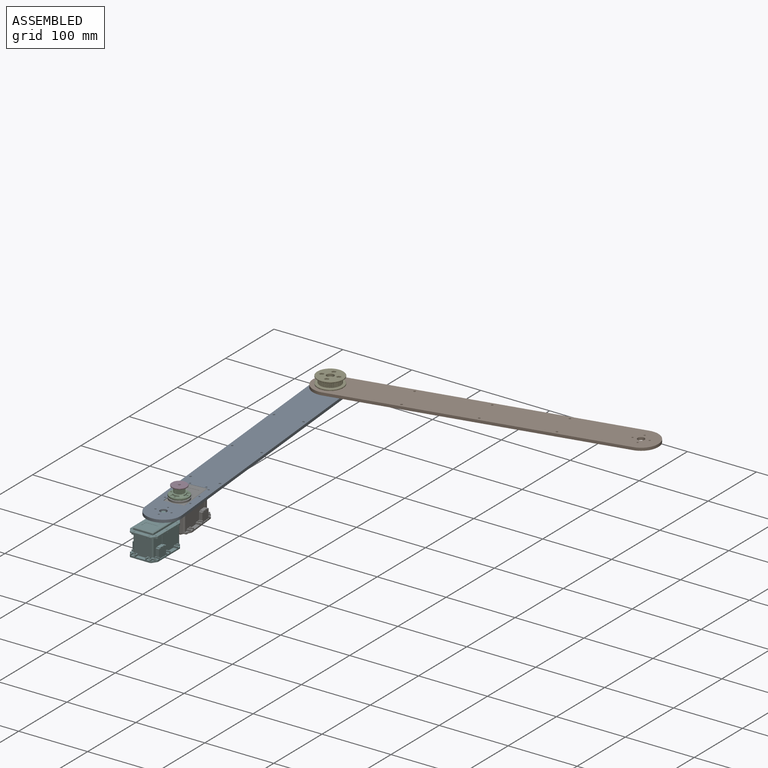
[diagram: assembled view]
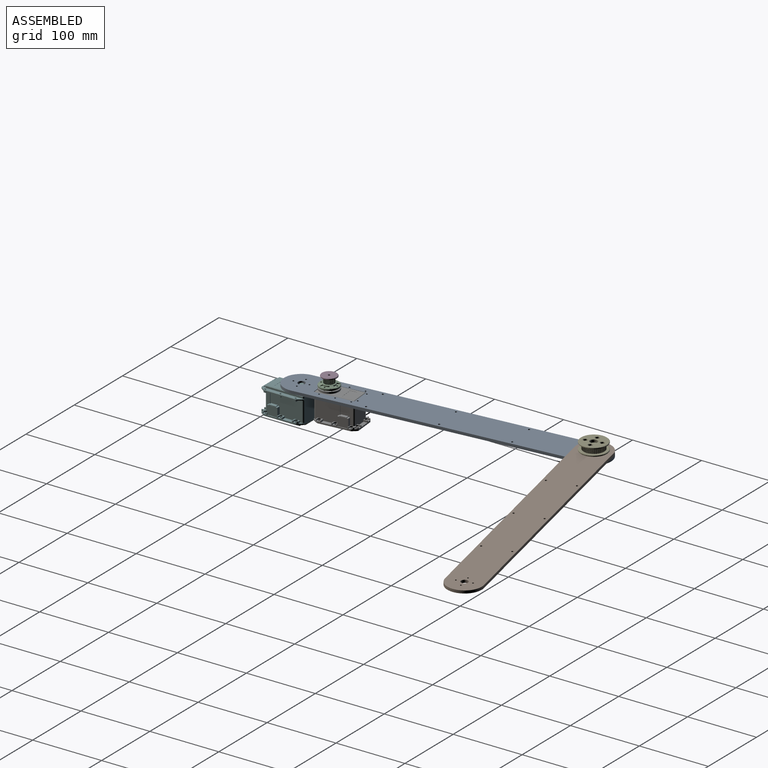
[diagram: assembled view, second angle]
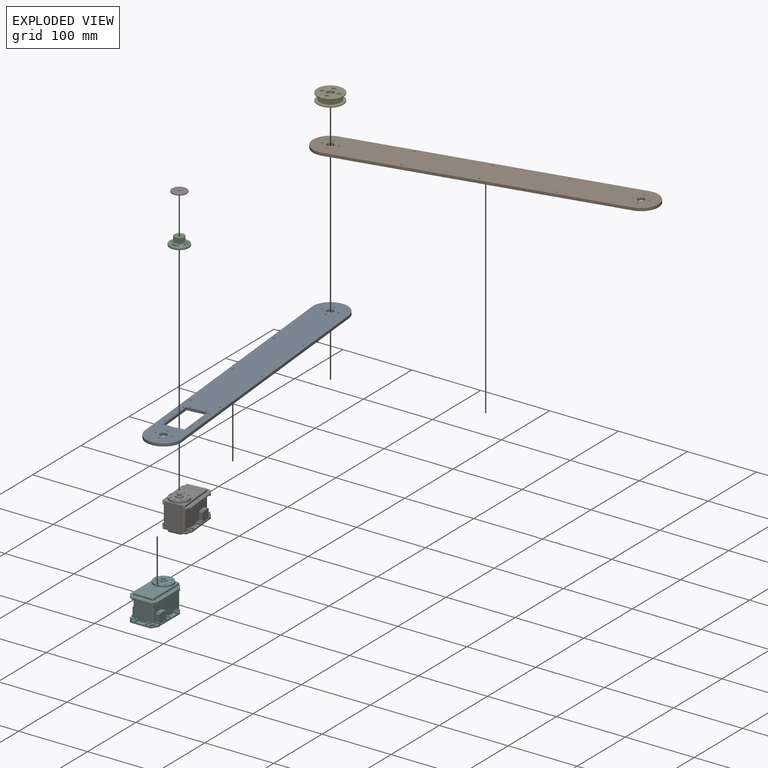
[diagram: exploded view]
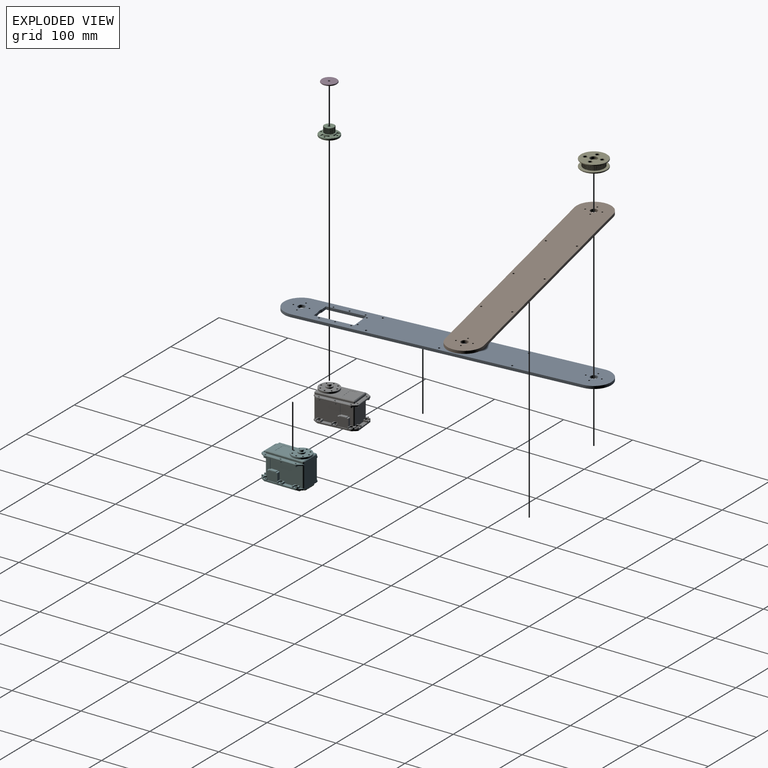
[diagram: exploded view, second angle]
FCSTD DOCUMENT  (FreeCAD 1.0R39109 (Git))
Label: arm_assembly3
License: All rights reserved
LicenseURL: https://en.wikipedia.org/wiki/All_rights_reserved
objects: App::FeaturePython×9, App::Link×5, Sketcher::SketchObject×2, PartDesign::Pad×2, PartDesign::Body×2, Assembly::JointGroup×1, Assembly::AssemblyObject×1
note: 12 computed .brp shape members not serialized (recipe doc carries the construction recipe); baked Part::Feature solids carry a one-line shape summary decoded from their .brp
EXTERNAL_REF file=srv.FCStd obj=Part__Feature
EXTERNAL_REF file=pulleys/gt2_24T_pulley_open.FCStd obj=Body
EXTERNAL_REF file=pulleys/gt2_24T_pulley_open.FCStd obj=Body001
EXTERNAL_REF file=pulleys/gt2_48T_pulley.FCStd obj=Body

FEATURE [Sketcher::SketchObject] Sketch
  ArcFitTolerance = 1e-06
  AttachmentSupport = -> [XY_Plane]
  FullyConstrained = false
  MakeInternals = false
  MapMode = 5
  sketch-geometry (67):
    g0: LineSegment [constr] StartX=1.5008e-12 StartY=20 StartZ=0 EndX=1.5008e-12 EndY=-20 EndZ=0
    g1: LineSegment [constr] StartX=-2.359e-12 StartY=0 StartZ=0 EndX=-2.359e-12 EndY=400 EndZ=0
    g2: LineSegment [constr] StartX=1.5008e-12 StartY=20 StartZ=0 EndX=1.5008e-12 EndY=25 EndZ=0
    g3: Circle CenterX=-2.359e-12 CenterY=400 CenterZ=0 NormalX=0 NormalY=0 NormalZ=1 AngleXU=0 Radius=5
    g4: Circle CenterX=-2.359e-12 CenterY=400 CenterZ=0 NormalX=0 NormalY=0 NormalZ=1 AngleXU=0 Radius=2
    g5: Circle CenterX=-10.9997 CenterY=400 CenterZ=0 NormalX=0 NormalY=0 NormalZ=1 AngleXU=0 Radius=1.25
    g6: Circle CenterX=0 CenterY=389 CenterZ=0 NormalX=0 NormalY=0 NormalZ=1 AngleXU=0 Radius=1.25
    g7: Circle CenterX=10.9997 CenterY=400 CenterZ=0 NormalX=0 NormalY=0 NormalZ=1 AngleXU=0 Radius=1.25
    g8: Circle CenterX=0 CenterY=411 CenterZ=0 NormalX=0 NormalY=0 NormalZ=1 AngleXU=0 Radius=1.25
    g9: LineSegment [constr] StartX=0 StartY=-5 StartZ=0 EndX=0 EndY=5.99996 EndZ=0
    g10: Circle [constr] CenterX=0 CenterY=0 CenterZ=0 NormalX=0 NormalY=0 NormalZ=1 AngleXU=0 Radius=14
    g11: LineSegment [constr] StartX=0 StartY=0 StartZ=0 EndX=25.23 EndY=0 EndZ=0
    g12: Circle [constr] CenterX=0 CenterY=-3.8e-05 CenterZ=0 NormalX=0 NormalY=0 NormalZ=1 AngleXU=0 Radius=11
    g13: Circle CenterX=0 CenterY=0 CenterZ=0 NormalX=0 NormalY=0 NormalZ=1 AngleXU=0 Radius=5
    g14: Circle CenterX=10.9997 CenterY=0 CenterZ=0 NormalX=0 NormalY=0 NormalZ=1 AngleXU=0 Radius=1.25
    g15: Circle CenterX=-10.9997 CenterY=0 CenterZ=0 NormalX=0 NormalY=0 NormalZ=1 AngleXU=0 Radius=1.25
    g16: Circle CenterX=0 CenterY=-10.9997 CenterZ=0 NormalX=0 NormalY=0 NormalZ=1 AngleXU=0 Radius=1.25
    g17: Circle CenterX=0 CenterY=11 CenterZ=0 NormalX=0 NormalY=0 NormalZ=1 AngleXU=0 Radius=1.25
    g18: LineSegment [constr] StartX=0 StartY=0 StartZ=0 EndX=-25 EndY=0 EndZ=0
    g19: LineSegment [constr] StartX=20.1368 StartY=86.0999 StartZ=0 EndX=20.1368 EndY=24.9999 EndZ=0
    g20: LineSegment [constr] StartX=0.036848 StartY=80.5 StartZ=0 EndX=14.5368 EndY=80.5 EndZ=0
    g21: LineSegment StartX=14.5368 StartY=80.5 StartZ=0 EndX=-14.4632 EndY=80.5 EndZ=0
    g22: LineSegment StartX=14.5368 StartY=80.5 StartZ=0 EndX=14.5368 EndY=24.9999 EndZ=0
    g23: Circle CenterX=11.0368 CenterY=83.3 CenterZ=0 NormalX=0 NormalY=0 NormalZ=1 AngleXU=0 Radius=1.25
    g24: Circle CenterX=17.3368 CenterY=78 CenterZ=0 NormalX=0 NormalY=0 NormalZ=1 AngleXU=0 Radius=1.25
    g25: LineSegment [constr] StartX=-20.0632 StartY=86.0999 StartZ=0 EndX=20.1368 EndY=86.0999 EndZ=0
    g26: Circle CenterX=17.3368 CenterY=56 CenterZ=0 NormalX=0 NormalY=0 NormalZ=1 AngleXU=0 Radius=1.25
    g27: Circle CenterX=17.3368 CenterY=34 CenterZ=0 NormalX=0 NormalY=0 NormalZ=1 AngleXU=0 Radius=1.25
    g28: Circle [constr] CenterX=0.036848 CenterY=37.9999 CenterZ=0 NormalX=0 NormalY=0 NormalZ=1 AngleXU=0 Radius=14
    g29: ArcOfCircle CenterX=0.036848 CenterY=37.9999 CenterZ=0 NormalX=0 NormalY=0 NormalZ=1 AngleXU=0 Radius=14 StartAngle=4.33214 EndAngle=5.09264
    g30: LineSegment StartX=5.233 StartY=24.9999 StartZ=0 EndX=14.5368 EndY=24.9999 EndZ=0
    g31: LineSegment [constr] StartX=14.5368 StartY=24.9999 StartZ=0 EndX=20.1368 EndY=24.9999 EndZ=0
    g32: LineSegment [constr] StartX=17.3368 StartY=56 StartZ=0 EndX=-17.2632 EndY=56 EndZ=0
    g33: LineSegment [constr] StartX=-20.0632 StartY=24.9999 StartZ=0 EndX=-20.0632 EndY=86.0999 EndZ=0
    g34: LineSegment StartX=-14.4632 StartY=80.5 StartZ=0 EndX=-14.4632 EndY=24.9999 EndZ=0
    g35: Circle CenterX=-17.2632 CenterY=78 CenterZ=0 NormalX=0 NormalY=0 NormalZ=1 AngleXU=0 Radius=1.25
    g36: Circle CenterX=-10.9632 CenterY=83.3 CenterZ=0 NormalX=0 NormalY=0 NormalZ=1 AngleXU=0 Radius=1.25
    g37: Circle CenterX=-17.2632 CenterY=56 CenterZ=0 NormalX=0 NormalY=0 NormalZ=1 AngleXU=0 Radius=1.25
    g38: Circle CenterX=-17.2632 CenterY=34 CenterZ=0 NormalX=0 NormalY=0 NormalZ=1 AngleXU=0 Radius=1.25
    g39: LineSegment StartX=-14.4632 StartY=24.9999 StartZ=0 EndX=-5.15931 EndY=24.9999 EndZ=0
    g40: LineSegment [constr] StartX=-20.0632 StartY=24.9999 StartZ=0 EndX=-14.4632 EndY=24.9999 EndZ=0
    g41: ArcOfCircle CenterX=0.115002 CenterY=3.75548e-06 CenterZ=0 NormalX=0 NormalY=0 NormalZ=1 AngleXU=0 Radius=25.115 StartAngle=3.14159 EndAngle=6.28319
    g42: ArcOfCircle CenterX=0.115002 CenterY=399.959 CenterZ=0 NormalX=0 NormalY=0 NormalZ=1 AngleXU=0 Radius=25.115 StartAngle=0 EndAngle=3.14159
    g43: LineSegment StartX=-25 StartY=3.75548e-06 StartZ=0 EndX=-25 EndY=399.959 EndZ=0
    g44: LineSegment StartX=25.23 StartY=3.75548e-06 StartZ=0 EndX=25.23 EndY=399.959 EndZ=0
    g45: LineSegment [constr] StartX=25.23 StartY=199.98 StartZ=0 EndX=-25 EndY=199.98 EndZ=0
    g46: LineSegment [constr] StartX=25.23 StartY=199.98 StartZ=0 EndX=55.23 EndY=199.98 EndZ=0
    g47: LineSegment [constr] StartX=25.23 StartY=0 StartZ=0 EndX=55.23 EndY=0 EndZ=0
    g48: LineSegment [constr] StartX=55.23 StartY=0 StartZ=0 EndX=55.23 EndY=199.98 EndZ=0
    g49: LineSegment [constr] StartX=55.23 StartY=99.9898 StartZ=0 EndX=25.23 EndY=99.9898 EndZ=0
    g50: LineSegment [constr] StartX=25.23 StartY=99.9898 StartZ=0 EndX=-25 EndY=99.9898 EndZ=0
    g51: LineSegment [constr] StartX=25.23 StartY=399.959 StartZ=0 EndX=55.23 EndY=399.959 EndZ=0
    g52: LineSegment [constr] StartX=55.23 StartY=399.959 StartZ=0 EndX=55.23 EndY=199.98 EndZ=0
    g53: LineSegment [constr] StartX=55.23 StartY=299.969 StartZ=0 EndX=25.23 EndY=299.969 EndZ=0
    g54: LineSegment [constr] StartX=25.23 StartY=299.969 StartZ=0 EndX=-25 EndY=299.969 EndZ=0
    g55: LineSegment [constr] StartX=-25 StartY=299.969 StartZ=0 EndX=-20 EndY=299.969 EndZ=0
    g56: LineSegment [constr] StartX=-20 StartY=299.969 StartZ=0 EndX=-20 EndY=199.98 EndZ=0
    g57: LineSegment [constr] StartX=-20 StartY=199.98 StartZ=0 EndX=-20 EndY=99.9898 EndZ=0
    g58: LineSegment [constr] StartX=25.23 StartY=299.969 StartZ=0 EndX=20.23 EndY=299.969 EndZ=0
    g59: LineSegment [constr] StartX=20.23 StartY=299.969 StartZ=0 EndX=20.23 EndY=199.98 EndZ=0
    g60: LineSegment [constr] StartX=20.23 StartY=199.98 StartZ=0 EndX=20.23 EndY=99.9898 EndZ=0
    g61: Circle CenterX=-20 CenterY=299.969 CenterZ=0 NormalX=0 NormalY=0 NormalZ=1 AngleXU=0 Radius=1.5
    g62: Circle CenterX=20.23 CenterY=299.969 CenterZ=0 NormalX=0 NormalY=0 NormalZ=1 AngleXU=0 Radius=1.5
    g63: Circle CenterX=-20 CenterY=199.98 CenterZ=0 NormalX=0 NormalY=0 NormalZ=1 AngleXU=0 Radius=1.5
    g64: Circle CenterX=20.23 CenterY=199.98 CenterZ=0 NormalX=0 NormalY=0 NormalZ=1 AngleXU=0 Radius=1.5
    g65: Circle CenterX=-20 CenterY=99.9898 CenterZ=0 NormalX=0 NormalY=0 NormalZ=1 AngleXU=0 Radius=1.5
    g66: Circle CenterX=20.23 CenterY=99.9898 CenterZ=0 NormalX=0 NormalY=0 NormalZ=1 AngleXU=0 Radius=1.5
  constraints (132):
    c: Vertical(g0)
    c: Vertical(g1)
    c: Coincident(g2,g0)
    c: Vertical(g2)
    c: Diameter(g3) = 10
    c: Coincident(g3,g1)
    c: Diameter(g4) = 4
    c: Coincident(g4,g1)
    c: Diameter(g8) = 2.5
    c: Diameter(g5) = 2.5
    c: Diameter(g6) = 2.5
    c: Diameter(g7) = 2.5
    c: Vertical(g9)
    c: Diameter(g10) = 28
    c: Coincident(g18,g10)
    c: Horizontal(g18)
    c: Coincident(g11,g10)
    c: Horizontal(g11)
    c: Diameter(g12) = 22
    c: Diameter(g13) = 10
    c: Coincident(g13,g10)
    c: Diameter(g17) = 2.5
    c: Diameter(g15) = 2.5
    c: Diameter(g16) = 2.5
    c: Diameter(g14) = 2.5
    c: Coincident(g25,g19)
    c: Coincident(g33,g25)
    c: Horizontal(g25)
    c: Vertical(g19)
    c: Vertical(g33)
    c: Distance(g19,g33) = 40.2
    c: Distance(g25,g33) = 61.1
    c: Diameter(g29) = 28
    c: Horizontal(g20)
    c: Coincident(g21,g20)
    c: Horizontal(g21)
    c: Coincident(g34,g21)
    c: Vertical(g34)
    c: Coincident(g22,g20)
    c: Vertical(g22)
    c: Diameter(g23) = 2.5
    c: Equal(g23,g36)
    c: Equal(g23,g27)
    c: Equal(g23,g38)
    c: Equal(g23,g37)
    c: Equal(g23,g35)
    c: Equal(g23,g24)
    c: Equal(g23,g26)
    c: Coincident(g28,g29)
    c: PointOnObject(g29,g28)
    c: Coincident(g30,g29)
    c: Coincident(g30,g22)
    c: Horizontal(g30)
    c: Coincident(g31,g22)
    c: Coincident(g31,g19)
    c: Horizontal(g31)
    c: Coincident(g39,g34)
    c: Coincident(g39,g29)
    c: Horizontal(g39)
    c: Coincident(g40,g33)
    c: Coincident(g40,g34)
    c: Horizontal(g40)
    c: Coincident(g32,g26)
    c: Coincident(g32,g37)
    c: Horizontal(g32)
    c: DistanceY(g28,g1) = 362
    c: Tangent(g41,g43) = 1.5708
    c: Tangent(g41,g44) = -1.5708
    c: Tangent(g42,g43) = 1.5708
    c: Tangent(g42,g44) = -1.5708
    c: Equal(g41,g42)
    c: Symmetric(g44,g44,g45)
    c: Symmetric(g43,g43,g45)
    c: Horizontal(g45)
    c: Distance(g46) = 30
    c: Horizontal(g46)
    c: Coincident(g46,g45)
    c: Distance(g47) = 30
    c: Horizontal(g47)
    c: Coincident(g47,g11)
    c: PointOnObject(g47,g-1)
    c: Coincident(g48,g47)
    c: Coincident(g48,g46)
    c: Vertical(g48)
    c: Symmetric(g48,g48,g49)
    c: PointOnObject(g49,g44)
    c: Horizontal(g49)
    c: Coincident(g50,g49)
    c: PointOnObject(g50,g43)
    c: Horizontal(g50)
    c: Distance(g51) = 30
    c: Horizontal(g51)
    c: Coincident(g51,g42)
    c: Coincident(g52,g51)
    c: Coincident(g52,g46)
    c: Symmetric(g52,g52,g53)
    c: PointOnObject(g53,g44)
    c: Horizontal(g53)
    c: Coincident(g54,g53)
    c: PointOnObject(g54,g43)
    c: Horizontal(g54)
    c: Distance(g55) = 5
    c: Coincident(g55,g54)
    c: PointOnObject(g55,g54)
    c: Coincident(g56,g55)
    c: PointOnObject(g56,g45)
    c: Vertical(g56)
    c: Coincident(g57,g56)
    c: PointOnObject(g57,g50)
    c: Vertical(g57)
    c: Distance(g58) = 5
    c: Coincident(g58,g53)
    c: PointOnObject(g58,g54)
    c: Coincident(g59,g58)
    c: PointOnObject(g59,g45)
    c: Vertical(g59)
    c: Coincident(g60,g59)
    c: PointOnObject(g60,g50)
    c: Vertical(g60)
    c: Coincident(g61,g55)
    c: Diameter(g61) = 3
    c: Coincident(g62,g58)
    c: Equal(g61,g62)
    c: Coincident(g63,g56)
    c: Equal(g61,g63)
    c: Coincident(g64,g59)
    c: Equal(g63,g64)
    c: Coincident(g65,g57)
    c: Equal(g63,g65)
    c: Coincident(g66,g60)
    c: Equal(g65,g66)
    c: DistanceY(g41,g28) = 37.9999
FEATURE [Sketcher::SketchObject] Sketch001
  ArcFitTolerance = 1e-06
  FullyConstrained = false
  MakeInternals = false
  MapMode = 5
  sketch-geometry (41):
    g0: Circle [constr] CenterX=7e-16 CenterY=0.000303 CenterZ=0 NormalX=0 NormalY=0 NormalZ=1 AngleXU=0 Radius=14
    g1: LineSegment [constr] StartX=7e-16 StartY=0.000303 StartZ=0 EndX=7e-16 EndY=400.001 EndZ=0
    g2: Circle CenterX=7e-16 CenterY=400.001 CenterZ=0 NormalX=0 NormalY=0 NormalZ=1 AngleXU=0 Radius=5
    g3: Circle CenterX=7e-16 CenterY=0 CenterZ=0 NormalX=0 NormalY=0 NormalZ=1 AngleXU=0 Radius=5
    g4: Circle CenterX=7e-16 CenterY=400.001 CenterZ=0 NormalX=0 NormalY=0 NormalZ=1 AngleXU=0 Radius=2
    g5: Circle CenterX=7e-16 CenterY=0.000303 CenterZ=0 NormalX=0 NormalY=0 NormalZ=1 AngleXU=0 Radius=2
    g6: Circle [constr] CenterX=0 CenterY=0 CenterZ=0 NormalX=0 NormalY=0 NormalZ=1 AngleXU=0 Radius=11
    g7: ArcOfCircle CenterX=7e-16 CenterY=0 CenterZ=0 NormalX=0 NormalY=0 NormalZ=1 AngleXU=0 Radius=25 StartAngle=3.14159 EndAngle=6.28319
    g8: ArcOfCircle CenterX=7e-16 CenterY=400.001 CenterZ=0 NormalX=0 NormalY=0 NormalZ=1 AngleXU=0 Radius=25 StartAngle=6e-16 EndAngle=3.14159
    g9: LineSegment StartX=-25 StartY=-8e-15 StartZ=0 EndX=-25 EndY=400.001 EndZ=0
    g10: LineSegment StartX=25 StartY=0 StartZ=0 EndX=25 EndY=400.001 EndZ=0
    g11: Circle CenterX=10.9997 CenterY=400.001 CenterZ=0 NormalX=0 NormalY=0 NormalZ=1 AngleXU=0 Radius=1.25
    g12: Circle CenterX=0 CenterY=411.001 CenterZ=0 NormalX=0 NormalY=0 NormalZ=1 AngleXU=0 Radius=1.25
    g13: Circle CenterX=-10.9997 CenterY=400.001 CenterZ=0 NormalX=0 NormalY=0 NormalZ=1 AngleXU=0 Radius=1.25
    g14: Circle CenterX=0 CenterY=389.001 CenterZ=0 NormalX=0 NormalY=0 NormalZ=1 AngleXU=0 Radius=1.25
    g15: Circle CenterX=10.9997 CenterY=0.000303 CenterZ=0 NormalX=0 NormalY=0 NormalZ=1 AngleXU=0 Radius=1.25
    g16: Circle CenterX=0 CenterY=11 CenterZ=0 NormalX=0 NormalY=0 NormalZ=1 AngleXU=0 Radius=1.25
    g17: Circle CenterX=-10.9997 CenterY=0.000303 CenterZ=0 NormalX=0 NormalY=0 NormalZ=1 AngleXU=0 Radius=1.25
    g18: Circle CenterX=0 CenterY=-10.9994 CenterZ=0 NormalX=0 NormalY=0 NormalZ=1 AngleXU=0 Radius=1.25
    g19: LineSegment [constr] StartX=25 StartY=200 StartZ=0 EndX=-25 EndY=200 EndZ=0
    g20: LineSegment [constr] StartX=25 StartY=200 StartZ=0 EndX=55 EndY=200 EndZ=0
    g21: LineSegment [constr] StartX=25 StartY=0 StartZ=0 EndX=55 EndY=0 EndZ=0
    g22: LineSegment [constr] StartX=25 StartY=400.001 StartZ=0 EndX=55 EndY=400.001 EndZ=0
    g23: LineSegment [constr] StartX=55 StartY=200 StartZ=0 EndX=55 EndY=400.001 EndZ=0
    g24: LineSegment [constr] StartX=55 StartY=200 StartZ=0 EndX=55 EndY=0 EndZ=0
    g25: LineSegment [constr] StartX=55 StartY=100 StartZ=0 EndX=25 EndY=100 EndZ=0
    g26: LineSegment [constr] StartX=25 StartY=100 StartZ=0 EndX=-25 EndY=100 EndZ=0
    g27: LineSegment [constr] StartX=55 StartY=300 StartZ=0 EndX=25 EndY=300 EndZ=0
    g28: LineSegment [constr] StartX=25 StartY=300 StartZ=0 EndX=-25 EndY=300 EndZ=0
    g29: LineSegment [constr] StartX=-25 StartY=300 StartZ=0 EndX=-20 EndY=300 EndZ=0
    g30: LineSegment [constr] StartX=-20 StartY=300 StartZ=0 EndX=-20 EndY=200 EndZ=0
    g31: LineSegment [constr] StartX=-20 StartY=200 StartZ=0 EndX=-20 EndY=100 EndZ=0
    g32: LineSegment [constr] StartX=25 StartY=100 StartZ=0 EndX=20 EndY=100 EndZ=0
    g33: LineSegment [constr] StartX=20 StartY=100 StartZ=0 EndX=20 EndY=200 EndZ=0
    g34: LineSegment [constr] StartX=20 StartY=200 StartZ=0 EndX=20 EndY=300 EndZ=0
    g35: Circle CenterX=-20 CenterY=300 CenterZ=0 NormalX=0 NormalY=0 NormalZ=1 AngleXU=0 Radius=1.5
    g36: Circle CenterX=20 CenterY=300 CenterZ=0 NormalX=0 NormalY=0 NormalZ=1 AngleXU=0 Radius=1.5
    g37: Circle CenterX=-20 CenterY=200 CenterZ=0 NormalX=0 NormalY=0 NormalZ=1 AngleXU=0 Radius=1.5
    g38: Circle CenterX=20 CenterY=200 CenterZ=0 NormalX=0 NormalY=0 NormalZ=1 AngleXU=0 Radius=1.5
    g39: Circle CenterX=-20 CenterY=100 CenterZ=0 NormalX=0 NormalY=0 NormalZ=1 AngleXU=0 Radius=1.5
    g40: Circle CenterX=20 CenterY=100 CenterZ=0 NormalX=0 NormalY=0 NormalZ=1 AngleXU=0 Radius=1.5
  constraints (85):
    c: Diameter(g0) = 28
    c: Coincident(g1,g0)
    c: Vertical(g1)
    c: Coincident(g2,g1)
    c: Diameter(g3) = 10
    c: Diameter(g4) = 4
    c: Coincident(g4,g1)
    c: Diameter(g5) = 4
    c: Coincident(g5,g0)
    c: Diameter(g6) = 22
    c: Tangent(g7,g9) = 1.5708
    c: Tangent(g7,g10) = -1.5708
    c: Tangent(g8,g9) = 1.5708
    c: Tangent(g8,g10) = -1.5708
    c: Equal(g7,g8)
    c: Radius(g7) = 25
    c: Coincident(g7,g3)
    c: Coincident(g8,g1)
    c: Vertical(g9)
    c: Diameter(g12) = 2.5
    c: Diameter(g13) = 2.5
    c: Diameter(g14) = 2.5
    c: Diameter(g11) = 2.5
    c: Diameter(g16) = 2.5
    c: Diameter(g17) = 2.5
    c: Diameter(g18) = 2.5
    c: Diameter(g15) = 2.5
    c: Symmetric(g10,g10,g19)
    c: Symmetric(g9,g9,g19)
    c: Distance(g20) = 30
    c: Horizontal(g20)
    c: Coincident(g20,g19)
    c: Distance(g21) = 30
    c: Horizontal(g21)
    c: Coincident(g21,g7)
    c: PointOnObject(g21,g-1)
    c: Distance(g22) = 30
    c: Horizontal(g22)
    c: Coincident(g22,g8)
    c: Coincident(g23,g20)
    c: Coincident(g23,g22)
    c: Coincident(g24,g20)
    c: Coincident(g24,g21)
    c: Symmetric(g24,g24,g25)
    c: PointOnObject(g25,g10)
    c: Horizontal(g25)
    c: Coincident(g26,g25)
    c: PointOnObject(g26,g9)
    c: Horizontal(g26)
    c: Symmetric(g23,g23,g27)
    c: PointOnObject(g27,g10)
    c: Horizontal(g27)
    c: Coincident(g28,g27)
    c: PointOnObject(g28,g9)
    c: Horizontal(g28)
    c: Distance(g29) = 5
    c: Horizontal(g29)
    c: Coincident(g29,g28)
    c: Coincident(g30,g29)
    c: PointOnObject(g30,g19)
    c: Vertical(g30)
    c: Coincident(g31,g30)
    c: PointOnObject(g31,g26)
    c: Vertical(g31)
    c: Distance(g32) = 5
    c: Horizontal(g32)
    c: Coincident(g32,g25)
    c: Coincident(g33,g32)
    c: PointOnObject(g33,g19)
    c: Vertical(g33)
    c: Coincident(g34,g33)
    c: PointOnObject(g34,g28)
    c: Vertical(g34)
    c: Diameter(g35) = 3
    c: Coincident(g35,g29)
    c: Coincident(g36,g34)
    c: Equal(g35,g36)
    c: Coincident(g37,g30)
    c: Equal(g35,g37)
    c: Coincident(g38,g33)
    c: Equal(g37,g38)
    c: Coincident(g39,g31)
    c: Equal(g37,g39)
    c: Coincident(g40,g32)
    c: Equal(g39,g40)
FEATURE [PartDesign::Pad] Pad
  Direction = (0,0,1)
  Length = 4
  Length2 = 10
  Profile = -> Sketch
  ReferenceAxis = -> Sketch [N_Axis]
  Refine = true
  Suppressed = false
  Type = 0
FEATURE [PartDesign::Body] Body  label="arm_low_1"
  AllowCompound = false
  Group = -> [Sketch,Pad]
  Origin = -> Origin
  Placement = pos=(0,0,25.3) rot=(0,0,1;0.092226rad)
  Tip = -> Pad
FEATURE [PartDesign::Pad] Pad001
  Direction = (0,0,1)
  Length = 4
  Length2 = 10
  Profile = -> Sketch001
  ReferenceAxis = -> Sketch001 [N_Axis]
  Refine = true
  Suppressed = false
  Type = 0
FEATURE [PartDesign::Body] Body001  label="arm_high_1"
  AllowCompound = false
  Group = -> [Sketch001,Pad001]
  Origin = -> Origin001
  Placement = pos=(353.819,484.249,29.3) rot=(0,0,1;1.78736rad)
  Tip = -> Pad001
FEATURE [App::Link] DC05_M01_DUMMY
  LinkedObject = -> <external srv.FCStd>#Part__Feature
FEATURE [App::FeaturePython] GroundedJoint  # Assembly grounded joint (typed FeaturePython)
  ObjectToGround = -> DC05_M01_DUMMY
FEATURE [App::FeaturePython] Joint  label="Revolute"  # Assembly joint (typed FeaturePython)
  Activated = true
  AngleMax = 0
  AngleMin = 0
  Detach1 = false
  Detach2 = false
  Distance = 0
  Distance2 = 0
  EnableAngleMax = false
  EnableAngleMin = false
  EnableLengthMax = false
  EnableLengthMin = false
  JointType = 1 (Revolute)
  LengthMax = 0
  LengthMin = 0
  Placement2 = pos=(0,0,25.3) rot=(-0.707107,0.707107,0;3.14159rad)
  Reference1 = -> Assembly [Body.Face11,Body.Edge2]
  Reference2 = -> Assembly [DC05_M01_DUMMY.Face269,DC05_M01_DUMMY.Edge1]
FEATURE [App::FeaturePython] Joint001  label="Revolute001"  # Assembly joint (typed FeaturePython)
  Activated = true
  AngleMax = 0
  AngleMin = 0
  Detach1 = false
  Detach2 = false
  Distance = 0
  Distance2 = 0
  EnableAngleMax = false
  EnableAngleMin = false
  EnableLengthMax = false
  EnableLengthMin = false
  JointType = 1 (Revolute)
  LengthMax = 0
  LengthMin = 0
  Placement1 = pos=(-5.68e-14,400.001,0) rot=(0,0,1;0rad)
  Placement2 = pos=(-2.4016e-12,400,4) rot=(0,0,1;0rad)
  Reference1 = -> Assembly [Body001.Edge17,Body001.Edge17]
  Reference2 = -> Assembly [Body.Edge36,Body.Edge36]
FEATURE [App::Link] DC05_M01_DUMMY001
  LinkPlacement = pos=(-3.46293,37.8418,9.05) rot=(0,0,1;3.23382rad)
  LinkedObject = -> <external srv.FCStd>#Part__Feature
  Placement = pos=(-3.46293,37.8418,9.05) rot=(0,0,1;3.23382rad)
FEATURE [App::FeaturePython] Joint002  label="Distance"  # Assembly joint (typed FeaturePython)
  Activated = true
  AngleMax = 0
  AngleMin = 0
  Detach1 = false
  Detach2 = false
  Distance = 0
  Distance2 = 0
  EnableAngleMax = false
  EnableAngleMin = false
  EnableLengthMax = false
  EnableLengthMin = false
  JointType = 5 (Distance)
  LengthMax = 0
  LengthMin = 0
  Placement1 = pos=(0.00149626,-23.2403,17) rot=(0,0,1;0rad)
  Placement2 = pos=(-10.9997,-1.1e-15,2) rot=(0,0,1;0rad)
  Reference1 = -> Assembly [DC05_M01_DUMMY001.Face128,DC05_M01_DUMMY001.Vertex405]
  Reference2 = -> Assembly [Body.Face29,Body.Edge23]
FEATURE [App::FeaturePython] Joint003  label="Distance001"  # Assembly joint (typed FeaturePython)
  Activated = true
  AngleMax = 0
  AngleMin = 0
  Detach1 = false
  Detach2 = false
  Distance = -55.5
  Distance2 = 0
  EnableAngleMax = false
  EnableAngleMin = false
  EnableLengthMax = false
  EnableLengthMin = false
  JointType = 5 (Distance)
  LengthMax = 0
  LengthMin = 0
  Placement1 = pos=(3.76754e-09,-42.5,18.25) rot=(1,0,0;1.5708rad)
  Placement2 = pos=(-9.81123,24.9999,2) rot=(-1,0,0;1.5708rad)
  Reference1 = -> Assembly [DC05_M01_DUMMY001.Face34,DC05_M01_DUMMY001.Face34]
  Reference2 = -> Assembly [Body.Face7,Body.Face7]
FEATURE [App::FeaturePython] Joint004  label="Distance002"  # Assembly joint (typed FeaturePython)
  Activated = true
  AngleMax = 0
  AngleMin = 0
  Detach1 = false
  Detach2 = false
  Distance = -28.5
  Distance2 = 0
  EnableAngleMax = false
  EnableAngleMin = false
  EnableLengthMax = false
  EnableLengthMin = false
  JointType = 5 (Distance)
  LengthMax = 0
  LengthMin = 0
  Placement1 = pos=(-14.5,-15.25,18.25) rot=(0.57735,-0.57735,-0.57735;2.0944rad)
  Placement2 = pos=(0.036848,37.9999,2) rot=(0,0,1;0rad)
  Reference1 = -> Assembly [DC05_M01_DUMMY001.Face46,DC05_M01_DUMMY001.Face46]
  Reference2 = -> Assembly [Body.Face8,Body.Face8]
FEATURE [App::Link] Body002  label="25T_1_pulley"
  LinkPlacement = pos=(-3.46293,37.8418,38.55) rot=(0,0,-1;1.47857rad)
  LinkedObject = -> <external pulleys/gt2_24T_pulley_open.FCStd>#Body
  Placement = pos=(-3.46293,37.8418,38.55) rot=(0,0,-1;1.47857rad)
FEATURE [App::FeaturePython] Joint005  label="Fixed"  # Assembly joint (typed FeaturePython)
  Activated = true
  AngleMax = 0
  AngleMin = 0
  Detach1 = false
  Detach2 = false
  Distance = 0
  Distance2 = 0
  EnableAngleMax = false
  EnableAngleMin = false
  EnableLengthMax = false
  EnableLengthMin = false
  JointType = 0 (Fixed)
  LengthMax = 0
  LengthMin = 0
  Placement1 = pos=(0,0,-6) rot=(1,0,0;3.14159rad)
  Placement2 = pos=(0,0,23.5) rot=(-0.707107,-0.707107,0;3.14159rad)
  Reference1 = -> Assembly [Body002.Edge454,Body002.Edge454]
  Reference2 = -> Assembly [DC05_M01_DUMMY001.Edge888,DC05_M01_DUMMY001.Edge888]
FEATURE [App::Link] Body003  label="25T_1_cover"
  LinkPlacement = pos=(-3.46293,37.8418,38.55) rot=(0,0,-1;1.47857rad)
  LinkedObject = -> <external pulleys/gt2_24T_pulley_open.FCStd>#Body001
  Placement = pos=(-3.46293,37.8418,38.55) rot=(0,0,-1;1.47857rad)
FEATURE [App::FeaturePython] Joint006  label="Fixed001"  # Assembly joint (typed FeaturePython)
  Activated = true
  AngleMax = 0
  AngleMin = 0
  Detach1 = false
  Detach2 = false
  Distance = 0
  Distance2 = 0
  EnableAngleMax = false
  EnableAngleMin = false
  EnableLengthMax = false
  EnableLengthMin = false
  JointType = 0 (Fixed)
  LengthMax = 0
  LengthMin = 0
  Placement1 = pos=(0,0,8) rot=(0,0,1;0rad)
  Placement2 = pos=(0,0,8) rot=(1,0,0;3.14159rad)
  Reference1 = -> Assembly [Body003.Edge8,Body003.Edge8]
  Reference2 = -> Assembly [Body002.Edge1,Body002.Edge1]
FEATURE [App::Link] Body004  label="48T_1"
  LinkPlacement = pos=(-36.8382,398.3,35.3) rot=(0,0,1;1.78736rad)
  LinkedObject = -> <external pulleys/gt2_48T_pulley.FCStd>#Body
  Placement = pos=(-36.8382,398.3,35.3) rot=(0,0,1;1.78736rad)
FEATURE [App::FeaturePython] Joint007  label="Fixed002"  # Assembly joint (typed FeaturePython)
  Activated = true
  AngleMax = 0
  AngleMin = 0
  Detach1 = false
  Detach2 = false
  Distance = 0
  Distance2 = 0
  EnableAngleMax = false
  EnableAngleMin = false
  EnableLengthMax = false
  EnableLengthMin = false
  JointType = 0 (Fixed)
  LengthMax = 0
  LengthMin = 0
  Placement1 = pos=(0,0,-2) rot=(1,0,0;3.14159rad)
  Placement2 = pos=(-5.68e-14,400.001,4) rot=(0,0,1;0rad)
  Reference1 = -> Assembly [Body004.Edge875,Body004.Edge875]
  Reference2 = -> Assembly [Body001.Edge18,Body001.Edge18]
FEATURE [Assembly::JointGroup] Joints
  Group = -> [GroundedJoint,Joint,Joint001,Joint002,Joint003,Joint004,Joint005,Joint006,Joint007]
FEATURE [Assembly::AssemblyObject] Assembly
  Group = -> [Joints,Body,Body001,DC05_M01_DUMMY,GroundedJoint,Joint,Joint001,DC05_M01_DUMMY001,Joint002,Joint003,Joint004,Body002,Joint005,Body003,Joint006,Body004,Joint007]
  Origin = -> Origin003
  Type = Assembly

RESOLVED EXTERNAL PARTS (link-assembly join: the EXTERNAL_REF files above that resolve inside this repo's crawl, each included once):
---- part pulleys/gt2_24T_pulley_open.FCStd = doc fcstd_ee15d791d3af ----
FCSTD DOCUMENT  (FreeCAD 1.0R39109 (Git))
Label: gt2_24T_pulley_open
License: All rights reserved
LicenseURL: https://en.wikipedia.org/wiki/All_rights_reserved
objects: Sketcher::SketchObject×8, PartDesign::Chamfer×7, PartDesign::Pad×4, PartDesign::Pocket×4, PartDesign::Body×2, Part::FeaturePython×1, PartDesign::FeatureBase×1, PartDesign::ShapeBinder×1, App::Part×1
note: 67 computed .brp shape members not serialized (recipe doc carries the construction recipe); baked Part::Feature solids carry a one-line shape summary decoded from their .brp

FEATURE [Part::FeaturePython] TimingGear  # WARN: FeaturePython — macro-defined, semantics opaque (R4)
  AttacherType = Attacher::AttachEngine3D
  h = 0.75
  height = 8
  num_teeth = 24
  offset = 0.4
  pitch = 2
  r0 = 0.555
  r1 = 1
  rs = 0.15
  type = 0
  u = 0.254
  version = 1.3.0
FEATURE [PartDesign::FeatureBase] BaseFeature
  BaseFeature = -> TimingGear
  Suppressed = false
FEATURE [Sketcher::SketchObject] Sketch
  ArcFitTolerance = 1e-06
  AttachmentSupport = -> [BaseFeature]
  FullyConstrained = true
  MakeInternals = false
  MapMode = 5
  Placement = pos=(0,0,0) rot=(1,0,0;3.14159rad)
  sketch-geometry (1):
    g0: Circle CenterX=0 CenterY=0 CenterZ=0 NormalX=0 NormalY=0 NormalZ=1 AngleXU=0 Radius=9
  constraints (2):
    c: Diameter(g0) = 18
    c: Coincident(g0,g-1)
FEATURE [PartDesign::Pad] Pad
  BaseFeature = -> BaseFeature
  Direction = (0,0,-1)
  Length = 2
  Length2 = 10
  Profile = -> Sketch
  ReferenceAxis = -> Sketch [N_Axis]
  Refine = true
  Suppressed = false
  Type = 0
FEATURE [Sketcher::SketchObject] Sketch001
  ArcFitTolerance = 1e-06
  AttachmentSupport = -> [Pad]
  FullyConstrained = true
  MakeInternals = false
  MapMode = 5
  Placement = pos=(0,0,-2) rot=(1,0,0;3.14159rad)
  sketch-geometry (1):
    g0: Circle CenterX=0 CenterY=0 CenterZ=0 NormalX=0 NormalY=0 NormalZ=1 AngleXU=0 Radius=14
  constraints (2):
    c: Diameter(g0) = 28
    c: Coincident(g0,g-1)
FEATURE [PartDesign::Pad] Pad001
  BaseFeature = -> Pad
  Direction = (0,0,-1)
  Length = 3
  Length2 = 10
  Profile = -> Sketch001
  ReferenceAxis = -> Sketch001 [N_Axis]
  Refine = true
  Suppressed = false
  Type = 0
FEATURE [Sketcher::SketchObject] Sketch002
  ArcFitTolerance = 1e-06
  AttachmentSupport = -> [Pad001]
  FullyConstrained = false
  MakeInternals = false
  MapMode = 5
  Placement = pos=(0,0,-5) rot=(1,0,0;3.14159rad)
  sketch-geometry (7):
    g0: Circle [constr] CenterX=0 CenterY=5.078e-13 CenterZ=0 NormalX=0 NormalY=0 NormalZ=1 AngleXU=0 Radius=11
    g1: LineSegment [constr] StartX=0 StartY=5.078e-13 StartZ=0 EndX=0 EndY=11 EndZ=0
    g2: Circle CenterX=0 CenterY=11 CenterZ=0 NormalX=0 NormalY=0 NormalZ=1 AngleXU=0 Radius=5.092e-13
    g3: Circle CenterX=0 CenterY=11 CenterZ=0 NormalX=0 NormalY=0 NormalZ=1 AngleXU=0 Radius=1.25
    g4: Circle CenterX=-11 CenterY=0 CenterZ=0 NormalX=0 NormalY=0 NormalZ=1 AngleXU=0 Radius=1.25
    g5: Circle CenterX=0 CenterY=-11 CenterZ=0 NormalX=0 NormalY=0 NormalZ=1 AngleXU=0 Radius=1.25
    g6: Circle CenterX=11 CenterY=0 CenterZ=0 NormalX=0 NormalY=0 NormalZ=1 AngleXU=0 Radius=1.25
  constraints (12):
    c: Diameter(g0) = 22
    c: Coincident(g0,g-1)
    c: Coincident(g1,g0)
    c: PointOnObject(g1,g0)
    c: Vertical(g1)
    c: Coincident(g2,g1)
    c: Tangent(g2,g0)
    c: Coincident(g3,g1)
    c: Diameter(g3) = 2.5
    c: Diameter(g4) = 2.5
    c: Diameter(g5) = 2.5
    c: Diameter(g6) = 2.5
FEATURE [PartDesign::Pocket] Pocket
  BaseFeature = -> Pad001
  Direction = (0,0,1)
  Length = 19
  Length2 = 5
  Profile = -> Sketch002
  ReferenceAxis = -> Sketch002 [N_Axis]
  Refine = true
  Suppressed = false
  Type = 0
FEATURE [Sketcher::SketchObject] Sketch003
  ArcFitTolerance = 1e-06
  AttachmentSupport = -> [Pocket]
  FullyConstrained = true
  MakeInternals = false
  MapMode = 5
  Placement = pos=(0,0,-5) rot=(1,0,0;3.14159rad)
  sketch-geometry (1):
    g0: Circle CenterX=0 CenterY=0 CenterZ=0 NormalX=0 NormalY=0 NormalZ=1 AngleXU=0 Radius=6
  constraints (2):
    c: Coincident(g0,g-1)
    c: Diameter(g0) = 12
FEATURE [PartDesign::Pocket] Pocket001
  BaseFeature = -> Pocket
  Direction = (0,0,1)
  Length = 5
  Length2 = 5
  Profile = -> Sketch003
  ReferenceAxis = -> Sketch003 [N_Axis]
  Refine = true
  Suppressed = false
  Type = 0
FEATURE [Sketcher::SketchObject] Sketch004
  ArcFitTolerance = 1e-06
  AttachmentSupport = -> [Pocket001]
  FullyConstrained = true
  MakeInternals = false
  MapMode = 5
  Placement = pos=(0,0,-9e-16) rot=(1,0,0;3.14159rad)
  sketch-geometry (1):
    g0: Circle CenterX=0 CenterY=0 CenterZ=0 NormalX=0 NormalY=0 NormalZ=1 AngleXU=0 Radius=1.75
  constraints (2):
    c: Coincident(g0,g-1)
    c: Diameter(g0) = 3.5
FEATURE [PartDesign::Pocket] Pocket002
  BaseFeature = -> Pocket001
  Direction = (0,0,1)
  Length = 20
  Length2 = 5
  Profile = -> Sketch004
  ReferenceAxis = -> Sketch004 [N_Axis]
  Refine = true
  Suppressed = false
  Type = 0
FEATURE [PartDesign::Chamfer] Chamfer
  Angle = 45
  Base = -> Pocket002 [Edge437]
  BaseFeature = -> Pocket002
  ChamferType = 0
  FlipDirection = false
  Refine = true
  Size = 4.2
  Size2 = 1
  SupportTransform = false
  Suppressed = false
  UseAllEdges = false
FEATURE [PartDesign::Chamfer] Chamfer001
  Angle = 45
  Base = -> Chamfer [Edge441]
  BaseFeature = -> Chamfer
  ChamferType = 0
  FlipDirection = false
  Refine = true
  Size = 0.5
  Size2 = 1
  SupportTransform = false
  Suppressed = false
  UseAllEdges = false
FEATURE [PartDesign::Chamfer] Chamfer002
  Angle = 45
  Base = -> Chamfer001 [Edge439,Edge447]
  BaseFeature = -> Chamfer001
  ChamferType = 0
  FlipDirection = false
  Refine = true
  Size = 0.5
  Size2 = 1
  SupportTransform = false
  Suppressed = false
  UseAllEdges = false
FEATURE [PartDesign::Chamfer] Chamfer003
  Angle = 45
  Base = -> Chamfer002 [Edge22,Edge15,Edge17,Edge15,Edge9,Edge11]
  BaseFeature = -> Chamfer002
  ChamferType = 0
  FlipDirection = false
  Refine = true
  Size = 0.5
  Size2 = 1
  SupportTransform = false
  Suppressed = false
  UseAllEdges = false
FEATURE [PartDesign::Chamfer] Chamfer004
  Angle = 45
  Base = -> Chamfer003 [Edge473]
  BaseFeature = -> Chamfer003
  ChamferType = 0
  FlipDirection = false
  Refine = true
  Size = 0.5
  Size2 = 1
  SupportTransform = false
  Suppressed = false
  UseAllEdges = false
FEATURE [PartDesign::ShapeBinder] CopyChamfer004
  TraceSupport = false
FEATURE [Sketcher::SketchObject] Sketch005
  ArcFitTolerance = 1e-06
  AttachmentSupport = -> [CopyChamfer004]
  FullyConstrained = true
  MakeInternals = false
  MapMode = 5
  Placement = pos=(0,0,8) rot=(0,0,1;0rad)
  sketch-geometry (1):
    g0: Circle CenterX=0 CenterY=0 CenterZ=0 NormalX=0 NormalY=0 NormalZ=1 AngleXU=0 Radius=11
  constraints (2):
    c: Diameter(g0) = 22
    c: Coincident(g0,g-1)
FEATURE [PartDesign::Pad] Pad002
  Direction = (0,0,1)
  Length = 2
  Length2 = 10
  Profile = -> Sketch005
  ReferenceAxis = -> Sketch005 [N_Axis]
  Refine = true
  Suppressed = false
  Type = 0
FEATURE [Sketcher::SketchObject] Sketch006
  ArcFitTolerance = 1e-06
  AttachmentSupport = -> [Pad002]
  FullyConstrained = true
  MakeInternals = false
  MapMode = 5
  Placement = pos=(0,0,10) rot=(0,0,1;0rad)
  sketch-geometry (1):
    g0: Circle CenterX=0 CenterY=0 CenterZ=0 NormalX=0 NormalY=0 NormalZ=1 AngleXU=0 Radius=1.5
  constraints (2):
    c: Diameter(g0) = 3
    c: Coincident(g0,g-1)
FEATURE [PartDesign::Pocket] Pocket003
  BaseFeature = -> Pad002
  Direction = (0,0,-1)
  Length = 15
  Length2 = 5
  Profile = -> Sketch006
  ReferenceAxis = -> Sketch006 [N_Axis]
  Refine = true
  Suppressed = false
  Type = 0
FEATURE [PartDesign::Chamfer] Chamfer005
  Angle = 45
  Base = -> Pocket003 [Edge2,Edge3,Edge5,Edge4]
  BaseFeature = -> Pocket003
  ChamferType = 0
  FlipDirection = false
  Refine = true
  Size = 0.5
  Size2 = 1
  SupportTransform = false
  Suppressed = false
  UseAllEdges = false
FEATURE [PartDesign::Body] Body001
  AllowCompound = false
  Group = -> [CopyChamfer004,Sketch005,Pad002,Sketch006,Pocket003,Chamfer005]
  Origin = -> Origin001
  Tip = -> Chamfer005
FEATURE [Sketcher::SketchObject] Sketch007
  ArcFitTolerance = 1e-06
  AttachmentSupport = -> [Chamfer004]
  ExternalGeometry = -> [Chamfer004]
  FullyConstrained = true
  MakeInternals = false
  MapMode = 5
  Placement = pos=(0,0,-2) rot=(0,0,1;0rad)
  sketch-geometry (25):
    g0: Circle [constr] CenterX=0 CenterY=0 CenterZ=0 NormalX=0 NormalY=0 NormalZ=1 AngleXU=0 Radius=9
    g1: LineSegment [constr] StartX=0 StartY=0 StartZ=0 EndX=7.79423 EndY=-4.5 EndZ=0
    g2: LineSegment [constr] StartX=0 StartY=0 StartZ=0 EndX=4.5 EndY=-7.79423 EndZ=0
    g3: LineSegment StartX=7.79423 StartY=-4.5 StartZ=0 EndX=11.6913 EndY=-6.75 EndZ=0
    g4: LineSegment StartX=4.5 StartY=-7.79423 StartZ=0 EndX=6.75 EndY=-11.6913 EndZ=0
    g5: LineSegment [constr] StartX=0 StartY=0 StartZ=0 EndX=7.79423 EndY=4.5 EndZ=0
    g6: LineSegment [constr] StartX=0 StartY=0 StartZ=0 EndX=4.5 EndY=7.79423 EndZ=0
    g7: LineSegment [constr] StartX=0 StartY=0 StartZ=0 EndX=-4.5 EndY=7.79423 EndZ=0
    g8: LineSegment [constr] StartX=0 StartY=0 StartZ=0 EndX=-7.79423 EndY=4.5 EndZ=0
    g9: LineSegment [constr] StartX=0 StartY=0 StartZ=0 EndX=-7.79423 EndY=-4.5 EndZ=0
    g10: LineSegment [constr] StartX=0 StartY=0 StartZ=0 EndX=-4.5 EndY=-7.79423 EndZ=0
    g11: LineSegment StartX=7.79423 StartY=4.5 StartZ=0 EndX=11.6913 EndY=6.75 EndZ=0
    g12: LineSegment StartX=4.5 StartY=7.79423 StartZ=0 EndX=6.75 EndY=11.6913 EndZ=0
    g13: LineSegment StartX=-4.5 StartY=7.79423 StartZ=0 EndX=-6.75 EndY=11.6913 EndZ=0
    g14: LineSegment StartX=-7.79423 StartY=4.5 StartZ=0 EndX=-11.6913 EndY=6.75 EndZ=0
    g15: LineSegment StartX=-7.79423 StartY=-4.5 StartZ=0 EndX=-11.6913 EndY=-6.75 EndZ=0
    g16: LineSegment StartX=-4.5 StartY=-7.79423 StartZ=0 EndX=-6.75 EndY=-11.6913 EndZ=0
    g17: ArcOfCircle CenterX=0 CenterY=0 CenterZ=0 NormalX=0 NormalY=0 NormalZ=1 AngleXU=0 Radius=9 StartAngle=0.523599 EndAngle=1.0472
    g18: ArcOfCircle CenterX=0 CenterY=0 CenterZ=0 NormalX=0 NormalY=0 NormalZ=1 AngleXU=0 Radius=9 StartAngle=2.0944 EndAngle=2.61799
    g19: ArcOfCircle CenterX=0 CenterY=0 CenterZ=0 NormalX=0 NormalY=0 NormalZ=1 AngleXU=0 Radius=9 StartAngle=3.66519 EndAngle=4.18879
    g20: ArcOfCircle CenterX=0 CenterY=0 CenterZ=0 NormalX=0 NormalY=0 NormalZ=1 AngleXU=0 Radius=9 StartAngle=5.23599 EndAngle=5.75959
    g21: ArcOfCircle CenterX=0 CenterY=0 CenterZ=0 NormalX=0 NormalY=0 NormalZ=1 AngleXU=0 Radius=13.5 StartAngle=0.523599 EndAngle=1.0472
    g22: ArcOfCircle CenterX=0 CenterY=0 CenterZ=0 NormalX=0 NormalY=0 NormalZ=1 AngleXU=0 Radius=13.5 StartAngle=2.0944 EndAngle=2.61799
    g23: ArcOfCircle CenterX=0 CenterY=0 CenterZ=0 NormalX=0 NormalY=0 NormalZ=1 AngleXU=0 Radius=13.5 StartAngle=3.66519 EndAngle=4.18879
    g24: ArcOfCircle CenterX=0 CenterY=0 CenterZ=0 NormalX=0 NormalY=0 NormalZ=1 AngleXU=0 Radius=13.5 StartAngle=5.23599 EndAngle=5.75959
  constraints (80):
    c: Coincident(g0,g-1)
    c: Diameter(g0) = 18
    c: Coincident(g1,g0)
    c: PointOnObject(g1,g0)
    c: Angle(g1,g-1) = 0.523599
    c: Coincident(g2,g0)
    c: PointOnObject(g2,g0)
    c: Angle(g2,g1) = 0.523599
    c: Coincident(g3,g1)
    c: PointOnObject(g3,g-4)
    c: Parallel(g1,g3)
    c: Coincident(g4,g2)
    c: PointOnObject(g4,g-4)
    c: Parallel(g2,g4)
    c: Coincident(g5,g0)
    c: PointOnObject(g5,g0)
    c: Coincident(g6,g0)
    c: PointOnObject(g6,g0)
    c: Coincident(g7,g0)
    c: PointOnObject(g7,g0)
    c: Coincident(g8,g0)
    c: PointOnObject(g8,g0)
    c: Coincident(g9,g0)
    c: PointOnObject(g9,g0)
    c: Coincident(g10,g0)
    c: PointOnObject(g10,g0)
    c: Angle(g-1,g5) = 0.523599
    c: Angle(g5,g6) = 0.523599
    c: Angle(g6,g7) = 1.0472
    c: Angle(g7,g8) = 0.523599
    c: Angle(g8,g9) = 1.0472
    c: Angle(g9,g10) = 0.523599
    c: Coincident(g11,g5)
    c: PointOnObject(g11,g-4)
    c: Coincident(g12,g6)
    c: PointOnObject(g12,g-4)
    c: Coincident(g13,g7)
    c: PointOnObject(g13,g-4)
    c: Coincident(g14,g8)
    c: PointOnObject(g14,g-4)
    c: Coincident(g15,g9)
    c: PointOnObject(g15,g-4)
    c: Coincident(g16,g10)
    c: PointOnObject(g16,g-4)
    c: Parallel(g5,g11)
    c: Parallel(g6,g12)
    c: Parallel(g7,g13)
    c: Parallel(g8,g14)
    c: Parallel(g9,g15)
    c: Parallel(g10,g16)
    c: Coincident(g17,g0)
    c: Coincident(g20,g1)
    c: PointOnObject(g17,g5)
    c: Equal(g17,g18)
    c: PointOnObject(g17,g6)
    c: PointOnObject(g18,g7)
    c: Coincident(g17,g18)
    c: Equal(g18,g19)
    c: PointOnObject(g18,g8)
    c: PointOnObject(g19,g9)
    c: Coincident(g18,g19)
    c: Equal(g19,g20)
    c: PointOnObject(g19,g10)
    c: PointOnObject(g20,g2)
    c: Coincident(g19,g20)
    c: Coincident(g21,g0)
    c: Coincident(g21,g11)
    c: PointOnObject(g24,g3)
    c: Equal(g21,g22)
    c: PointOnObject(g21,g12)
    c: PointOnObject(g22,g13)
    c: Coincident(g21,g22)
    c: Equal(g22,g23)
    c: PointOnObject(g22,g14)
    c: PointOnObject(g23,g15)
    c: Coincident(g22,g23)
    c: Equal(g23,g24)
    c: PointOnObject(g23,g16)
    c: PointOnObject(g24,g4)
    c: Coincident(g23,g24)
FEATURE [PartDesign::Pad] Pad003
  BaseFeature = -> Chamfer004
  Direction = (0,0,1)
  Length = 1.5
  Length2 = 10
  Profile = -> Sketch007
  ReferenceAxis = -> Sketch007 [N_Axis]
  Refine = true
  Suppressed = false
  Type = 0
FEATURE [PartDesign::Chamfer] Chamfer006
  Angle = 45
  Base = -> Pad003 [Edge453,Edge471,Edge465,Edge459]
  BaseFeature = -> Pad003
  ChamferType = 1
  FlipDirection = false
  Refine = true
  Size = 4.4
  Size2 = 1.4
  SupportTransform = false
  Suppressed = false
  UseAllEdges = false
FEATURE [PartDesign::Body] Body
  AllowCompound = false
  BaseFeature = -> TimingGear
  Group = -> [BaseFeature,Sketch,Pad,Sketch001,Pad001,Sketch002,Pocket,Sketch003,Pocket001,Sketch004,Pocket002,Chamfer,Chamfer001,Chamfer002,Chamfer003,Chamfer004,Sketch007,Pad003,Chamfer006]
  Origin = -> Origin
  Tip = -> Chamfer006
FEATURE [App::Part] Part
  Group = -> [TimingGear,Body,Body001]
  Origin = -> Origin002
---- part pulleys/gt2_48T_pulley.FCStd = doc fcstd_034fdf5fdbef ----
FCSTD DOCUMENT  (FreeCAD 1.0R39109 (Git))
Label: gt2_48T_pulley
License: All rights reserved
LicenseURL: https://en.wikipedia.org/wiki/All_rights_reserved
objects: Sketcher::SketchObject×6, PartDesign::Chamfer×5, PartDesign::Pocket×4, PartDesign::Pad×2, Part::FeaturePython×1, PartDesign::FeatureBase×1, PartDesign::Body×1
note: 49 computed .brp shape members not serialized (recipe doc carries the construction recipe); baked Part::Feature solids carry a one-line shape summary decoded from their .brp

FEATURE [Part::FeaturePython] TimingGear  # WARN: FeaturePython — macro-defined, semantics opaque (R4)
  AttacherType = Attacher::AttachEngine3D
  h = 0.75
  height = 8
  num_teeth = 48
  offset = 0.4
  pitch = 2
  r0 = 0.555
  r1 = 1
  rs = 0.15
  type = 0
  u = 0.254
  version = 1.3.0
FEATURE [PartDesign::FeatureBase] BaseFeature
  BaseFeature = -> TimingGear
  Suppressed = false
FEATURE [Sketcher::SketchObject] Sketch
  ArcFitTolerance = 1e-06
  AttachmentSupport = -> [BaseFeature]
  FullyConstrained = true
  MakeInternals = false
  MapMode = 5
  Placement = pos=(0,0,0) rot=(1,0,0;3.14159rad)
  sketch-geometry (1):
    g0: Circle CenterX=0 CenterY=0 CenterZ=0 NormalX=0 NormalY=0 NormalZ=1 AngleXU=0 Radius=19
  constraints (2):
    c: Diameter(g0) = 38
    c: Coincident(g0,g-1)
FEATURE [PartDesign::Pad] Pad
  BaseFeature = -> BaseFeature
  Direction = (0,0,-1)
  Length = 2
  Length2 = 10
  Profile = -> Sketch
  ReferenceAxis = -> Sketch [N_Axis]
  Refine = true
  Suppressed = false
  Type = 0
FEATURE [Sketcher::SketchObject] Sketch001
  ArcFitTolerance = 1e-06
  AttachmentSupport = -> [Pad]
  FullyConstrained = false
  MakeInternals = false
  MapMode = 5
  Placement = pos=(0,0,-2) rot=(1,0,0;3.14159rad)
  sketch-geometry (6):
    g0: Circle [constr] CenterX=0 CenterY=0 CenterZ=0 NormalX=0 NormalY=0 NormalZ=1 AngleXU=0 Radius=11
    g1: LineSegment [constr] StartX=0 StartY=0 StartZ=0 EndX=0 EndY=11 EndZ=0
    g2: Circle CenterX=0 CenterY=11 CenterZ=0 NormalX=0 NormalY=0 NormalZ=1 AngleXU=0 Radius=1.5
    g3: Circle CenterX=-11 CenterY=0 CenterZ=0 NormalX=0 NormalY=0 NormalZ=1 AngleXU=0 Radius=1.5
    g4: Circle CenterX=0 CenterY=-11 CenterZ=0 NormalX=0 NormalY=0 NormalZ=1 AngleXU=0 Radius=1.5
    g5: Circle CenterX=11 CenterY=0 CenterZ=0 NormalX=0 NormalY=0 NormalZ=1 AngleXU=0 Radius=1.5
  constraints (10):
    c: Diameter(g0) = 22
    c: Coincident(g0,g-1)
    c: Coincident(g1,g0)
    c: PointOnObject(g1,g0)
    c: Vertical(g1)
    c: Coincident(g2,g1)
    c: Diameter(g2) = 3
    c: Equal(g5,g2)
    c: Equal(g4,g5)
    c: Equal(g3,g4)
FEATURE [Sketcher::SketchObject] Sketch002
  ArcFitTolerance = 1e-06
  AttachmentSupport = -> [Pad]
  ExternalGeometry = -> [Pad]
  FullyConstrained = true
  MakeInternals = false
  MapMode = 5
  Placement = pos=(0,0,8) rot=(0,0,1;0rad)
  sketch-geometry (1):
    g0: Circle CenterX=0 CenterY=0 CenterZ=0 NormalX=0 NormalY=0 NormalZ=1 AngleXU=0 Radius=19
  constraints (2):
    c: Coincident(g0,g-1)
    c: Diameter(g0) = 38
FEATURE [PartDesign::Pad] Pad001
  BaseFeature = -> Pad
  Direction = (0,0,1)
  Length = 2
  Length2 = 10
  Profile = -> Sketch002
  ReferenceAxis = -> Sketch002 [N_Axis]
  Refine = true
  Suppressed = false
  Type = 0
FEATURE [PartDesign::Pocket] Pocket
  BaseFeature = -> Pad001
  Direction = (0,0,1)
  Length = 29
  Length2 = 5
  Profile = -> Sketch001
  ReferenceAxis = -> Sketch001 [N_Axis]
  Refine = true
  Suppressed = false
  Type = 0
FEATURE [Sketcher::SketchObject] Sketch003
  ArcFitTolerance = 1e-06
  AttachmentSupport = -> [Pocket]
  FullyConstrained = true
  MakeInternals = false
  MapMode = 5
  Placement = pos=(0,0,-2) rot=(1,0,0;3.14159rad)
  sketch-geometry (1):
    g0: Circle CenterX=0 CenterY=0 CenterZ=0 NormalX=0 NormalY=0 NormalZ=1 AngleXU=0 Radius=3
  constraints (2):
    c: Diameter(g0) = 6
    c: Coincident(g0,g-1)
FEATURE [PartDesign::Pocket] Pocket001
  BaseFeature = -> Pocket
  Direction = (0,0,1)
  Length = 17
  Length2 = 5
  Profile = -> Sketch003
  ReferenceAxis = -> Sketch003 [N_Axis]
  Refine = true
  Suppressed = false
  Type = 0
FEATURE [PartDesign::Chamfer] Chamfer
  Angle = 45
  Base = -> Pocket001 [Edge11,Edge297,Edge870,Edge586,Edge871,Edge874,Edge875,Edge872]
  BaseFeature = -> Pocket001
  ChamferType = 0
  FlipDirection = false
  Refine = true
  Size = 0.5
  Size2 = 1
  SupportTransform = false
  Suppressed = false
  UseAllEdges = false
FEATURE [Sketcher::SketchObject] Sketch004
  ArcFitTolerance = 1e-06
  AttachmentSupport = -> [Chamfer]
  ExternalGeometry = -> [Chamfer]
  FullyConstrained = false
  MakeInternals = false
  MapMode = 5
  Placement = pos=(0,0,10) rot=(0,0,1;0rad)
  sketch-geometry (28):
    g0: LineSegment StartX=0 StartY=14 StartZ=0 EndX=-2.59808 EndY=12.5 EndZ=0
    g1: LineSegment StartX=-2.59808 StartY=12.5 StartZ=0 EndX=-2.59808 EndY=9.5 EndZ=0
    g2: LineSegment StartX=-2.59808 StartY=9.5 StartZ=0 EndX=-4e-16 EndY=8 EndZ=0
    g3: LineSegment StartX=-4e-16 StartY=8 StartZ=0 EndX=2.59808 EndY=9.5 EndZ=0
    g4: LineSegment StartX=2.59808 StartY=9.5 StartZ=0 EndX=2.59808 EndY=12.5 EndZ=0
    g5: LineSegment StartX=2.59808 StartY=12.5 StartZ=0 EndX=0 EndY=14 EndZ=0
    g6: Circle [constr] CenterX=0 CenterY=11 CenterZ=0 NormalX=0 NormalY=0 NormalZ=1 AngleXU=0 Radius=3
    g7: LineSegment StartX=11 StartY=3 StartZ=0 EndX=8.40192 EndY=1.5 EndZ=0
    g8: LineSegment StartX=8.40192 StartY=1.5 StartZ=0 EndX=8.40192 EndY=-1.5 EndZ=0
    g9: LineSegment StartX=8.40192 StartY=-1.5 StartZ=0 EndX=11 EndY=-3 EndZ=0
    g10: LineSegment StartX=11 StartY=-3 StartZ=0 EndX=13.5981 EndY=-1.5 EndZ=0
    g11: LineSegment StartX=13.5981 StartY=-1.5 StartZ=0 EndX=13.5981 EndY=1.5 EndZ=0
    g12: LineSegment StartX=13.5981 StartY=1.5 StartZ=0 EndX=11 EndY=3 EndZ=0
    g13: Circle [constr] CenterX=11 CenterY=0 CenterZ=0 NormalX=0 NormalY=0 NormalZ=1 AngleXU=0 Radius=3
    g14: LineSegment StartX=0 StartY=-8 StartZ=0 EndX=-2.59808 EndY=-9.5 EndZ=0
    g15: LineSegment StartX=-2.59808 StartY=-9.5 StartZ=0 EndX=-2.59808 EndY=-12.5 EndZ=0
    g16: LineSegment StartX=-2.59808 StartY=-12.5 StartZ=0 EndX=-4e-16 EndY=-14 EndZ=0
    g17: LineSegment StartX=-4e-16 StartY=-14 StartZ=0 EndX=2.59808 EndY=-12.5 EndZ=0
    g18: LineSegment StartX=2.59808 StartY=-12.5 StartZ=0 EndX=2.59808 EndY=-9.5 EndZ=0
    g19: LineSegment StartX=2.59808 StartY=-9.5 StartZ=0 EndX=0 EndY=-8 EndZ=0
    g20: Circle [constr] CenterX=0 CenterY=-11 CenterZ=0 NormalX=0 NormalY=0 NormalZ=1 AngleXU=0 Radius=3
    g21: LineSegment StartX=-11 StartY=3 StartZ=0 EndX=-13.5981 EndY=1.5 EndZ=0
    g22: LineSegment StartX=-13.5981 StartY=1.5 StartZ=0 EndX=-13.5981 EndY=-1.5 EndZ=0
    g23: LineSegment StartX=-13.5981 StartY=-1.5 StartZ=0 EndX=-11 EndY=-3 EndZ=0
    g24: LineSegment StartX=-11 StartY=-3 StartZ=0 EndX=-8.40192 EndY=-1.5 EndZ=0
    g25: LineSegment StartX=-8.40192 StartY=-1.5 StartZ=0 EndX=-8.40192 EndY=1.5 EndZ=0
    g26: LineSegment StartX=-8.40192 StartY=1.5 StartZ=0 EndX=-11 EndY=3 EndZ=0
    g27: Circle [constr] CenterX=-11 CenterY=0 CenterZ=0 NormalX=0 NormalY=0 NormalZ=1 AngleXU=0 Radius=3
  constraints (62):
    c: Coincident(g0,g1)
    c: Coincident(g1,g2)
    c: Coincident(g2,g3)
    c: Coincident(g3,g4)
    c: Coincident(g4,g5)
    c: Coincident(g5,g0)
    c: Equal(g0, g1-g5) x5
    c: PointOnObject(g0,g6)
    c: PointOnObject(g1,g6)
    c: PointOnObject(g2,g6)
    c: PointOnObject(g3,g6)
    c: PointOnObject(g4,g6)
    c: PointOnObject(g5,g6)
    c: Radius(g6) = 3
    c: Coincident(g6,g-3)
    c: PointOnObject(g5,g-2)
    c: Coincident(g7,g8)
    c: Coincident(g8,g9)
    c: Coincident(g9,g10)
    c: Coincident(g10,g11)
    c: Coincident(g11,g12)
    c: Coincident(g12,g7)
    c: Equal(g7, g8-g12) x5
    c: PointOnObject(g7,g13)
    c: PointOnObject(g8,g13)
    c: PointOnObject(g9,g13)
    c: PointOnObject(g10,g13)
    c: PointOnObject(g11,g13)
    c: PointOnObject(g12,g13)
    c: Radius(g13) = 3
    c: Coincident(g13,g-5)
    c: Coincident(g14,g15)
    c: Coincident(g15,g16)
    c: Coincident(g16,g17)
    c: Coincident(g17,g18)
    c: Coincident(g18,g19)
    c: Coincident(g19,g14)
    c: Equal(g14, g15-g19) x5
    c: PointOnObject(g14,g20)
    c: PointOnObject(g15,g20)
    c: PointOnObject(g16,g20)
    c: PointOnObject(g17,g20)
    c: PointOnObject(g18,g20)
    c: PointOnObject(g19,g20)
    c: Radius(g20) = 3
    c: Coincident(g20,g-6)
    c: PointOnObject(g19,g-2)
    c: Coincident(g21,g22)
    c: Coincident(g22,g23)
    c: Coincident(g23,g24)
    c: Coincident(g24,g25)
    c: Coincident(g25,g26)
    c: Coincident(g26,g21)
    c: Equal(g21, g22-g26) x5
    c: PointOnObject(g21,g27)
    c: PointOnObject(g22,g27)
    c: PointOnObject(g23,g27)
    c: PointOnObject(g24,g27)
    c: PointOnObject(g25,g27)
    c: PointOnObject(g26,g27)
    c: Radius(g27) = 3
    c: Coincident(g27,g-4)
FEATURE [PartDesign::Pocket] Pocket002
  BaseFeature = -> Chamfer
  Direction = (0,0,-1)
  Length = 2.5
  Length2 = 5
  Profile = -> Sketch004
  ReferenceAxis = -> Sketch004 [N_Axis]
  Refine = true
  Suppressed = false
  Type = 0
FEATURE [PartDesign::Chamfer] Chamfer001
  Angle = 45
  Base = -> Pocket002 [Edge901,Edge900,Edge905,Edge904,Edge903,Edge902,Edge913,Edge912,Edge917,Edge916,Edge915,Edge914,Edge895,Edge894,Edge899,Edge898,Edge897,Edge896,Edge907,Edge906,Edge911,Edge910,Edge909,Edge908]
  BaseFeature = -> Pocket002
  ChamferType = 0
  FlipDirection = false
  Refine = true
  Size = 0.5
  Size2 = 1
  SupportTransform = false
  Suppressed = false
  UseAllEdges = false
FEATURE [PartDesign::Chamfer] Chamfer002
  Angle = 45
  Base = -> Chamfer001 [Edge134,Edge147,Edge148,Edge149]
  BaseFeature = -> Chamfer001
  ChamferType = 0
  FlipDirection = false
  Refine = true
  Size = 0.5
  Size2 = 1
  SupportTransform = false
  Suppressed = false
  UseAllEdges = false
FEATURE [Sketcher::SketchObject] Sketch005
  ArcFitTolerance = 1e-06
  AttachmentSupport = -> [Chamfer002]
  ExternalGeometry = -> [Chamfer002]
  FullyConstrained = true
  MakeInternals = false
  MapMode = 5
  Placement = pos=(0,0,10) rot=(0,0,1;0rad)
  sketch-geometry (1):
    g0: Circle CenterX=0 CenterY=0 CenterZ=0 NormalX=0 NormalY=0 NormalZ=1 AngleXU=0 Radius=5.2
  constraints (2):
    c: Diameter(g0) = 10.4
    c: Coincident(g0,g-1)
FEATURE [PartDesign::Pocket] Pocket003
  BaseFeature = -> Chamfer002
  Direction = (0,0,-1)
  Length = 4.2
  Length2 = 5
  Profile = -> Sketch005
  ReferenceAxis = -> Sketch005 [N_Axis]
  Refine = true
  Suppressed = false
  Type = 0
FEATURE [PartDesign::Chamfer] Chamfer003
  Angle = 45
  Base = -> Pocket003 [Edge45]
  BaseFeature = -> Pocket003
  ChamferType = 0
  FlipDirection = false
  Refine = true
  Size = 0.5
  Size2 = 1
  SupportTransform = false
  Suppressed = false
  UseAllEdges = false
FEATURE [PartDesign::Chamfer] Chamfer004
  Angle = 45
  Base = -> Chamfer003 [Edge131,Edge139]
  BaseFeature = -> Chamfer003
  ChamferType = 0
  FlipDirection = false
  Refine = true
  Size = 0.5
  Size2 = 1
  SupportTransform = false
  Suppressed = false
  UseAllEdges = false
FEATURE [PartDesign::Body] Body
  AllowCompound = false
  BaseFeature = -> TimingGear
  Group = -> [BaseFeature,Sketch,Pad,Sketch001,Sketch002,Pad001,Pocket,Sketch003,Pocket001,Chamfer,Sketch004,Pocket002,Chamfer001,Chamfer002,Sketch005,Pocket003,Chamfer003,Chamfer004]
  Origin = -> Origin
  Tip = -> Chamfer004
